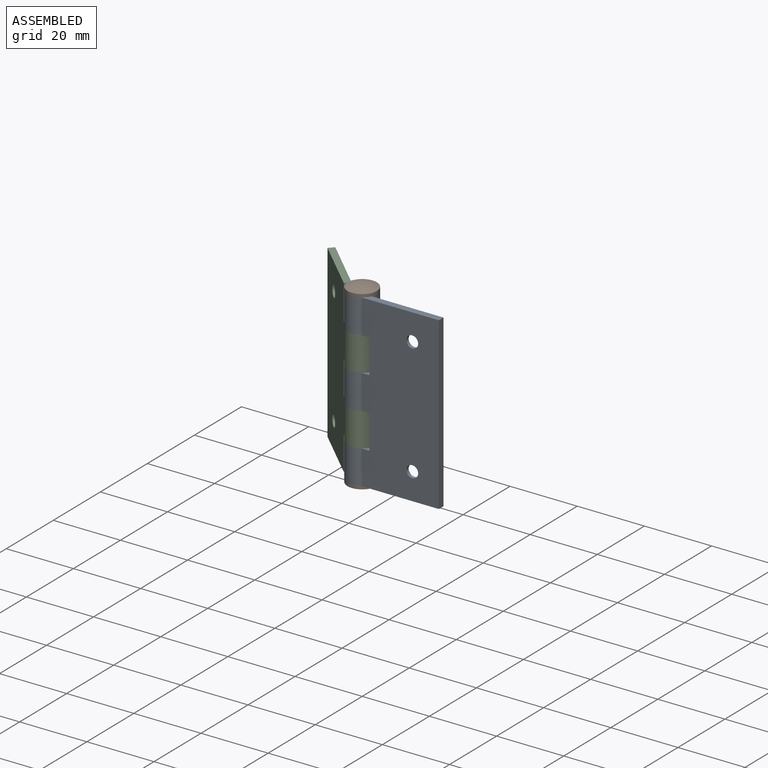
[diagram: assembled view]
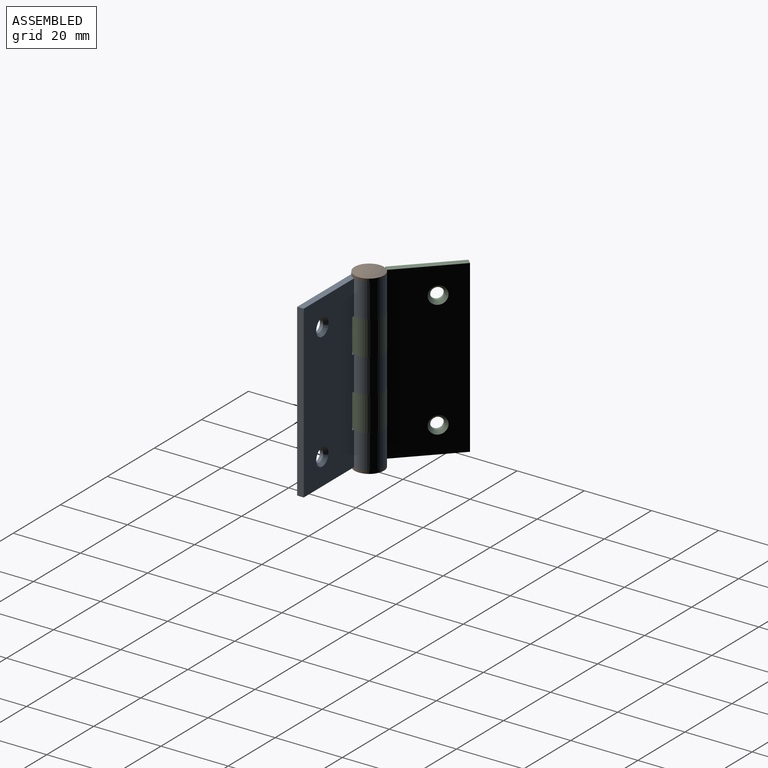
[diagram: assembled view, second angle]
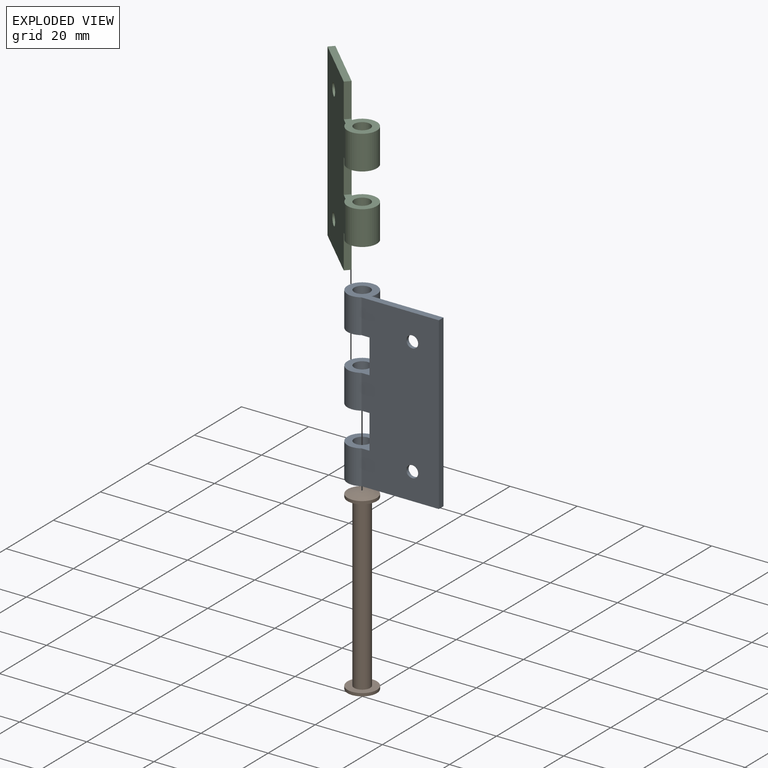
[diagram: exploded view]
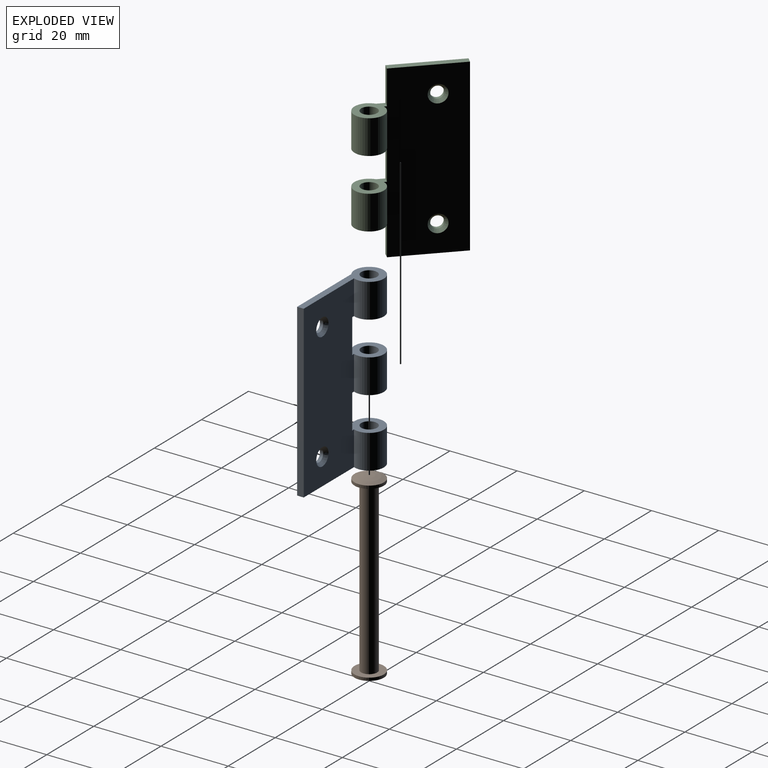
[diagram: exploded view, second angle]
ASSEMBLY  parts=3 mates=3
PART A: 21 faces, bbox 29.8x8.7x50.8 mm
  f0: cylinder r=4.37mm len=10.16mm, axis (0,0,-1), area 252.4mm2, adj f4,f9,f17,f19
  f1: cylinder r=2.38mm len=10.16mm, axis (0,0,-1), area 152mm2, adj f17,f19
  f2: cylinder r=4.37mm len=10.16mm, axis (0,0,-1), area 252.4mm2, adj f4,f6,f9,f16
  f3: cylinder r=2.38mm len=10.16mm, axis (0,0,-1), area 152mm2, adj f6,f16
  f4: plane 50.8x21.38mm, normal (0,1,0), area 1028.8mm2, adj f0,f2,f5,f6,f7,f8,f12,f14
  f5: plane 29.77x8.73mm, normal (0,0,1), area 85.2mm2, adj f4,f7,f8,f9,f10
  f6: plane 29.77x8.73mm, normal (0,0,-1), area 85.2mm2, adj f2,f3,f4,f7,f9
  f7: plane 50.8x1.96mm, normal (1,0,0), area 99.4mm2, adj f4,f5,f6,f9
  f8: cylinder r=4.37mm len=10.16mm, axis (0,0,-1), area 252.4mm2, adj f4,f5,f9,f20
  f9: plane 50.8x23.02mm, normal (0,-1,0), area 1102mm2, adj f0,f2,f5,f6,f7,f8,f11,f13
  f10: cylinder r=2.38mm len=10.16mm, axis (0,0,-1), area 152mm2, adj f5,f20
  f11: cylinder r=1.75mm len=3.51mm, axis (0,1,0), area 10.8mm2, adj f9,f12
  f12: cone r=1.75mm half-angle=41deg, axis (0,1,0), area 17.7mm2, adj f4,f11
  f13: cylinder r=1.75mm len=3.51mm, axis (0,1,0), area 10.8mm2, adj f9,f14
  f14: cone r=1.75mm half-angle=41deg, axis (0,1,0), area 17.7mm2, adj f4,f13
  f15: plane 10.16x1.96mm, normal (-1,0,0), area 19.9mm2, adj f4,f9,f16,f17
  f16: plane 9.11x8.73mm, normal (0,0,1), area 44.8mm2, adj f2,f3,f4,f9,f15
  f17: plane 9.11x8.73mm, normal (0,0,-1), area 44.8mm2, adj f0,f1,f4,f9,f15
  f18: plane 10.16x1.96mm, normal (-1,0,0), area 19.9mm2, adj f4,f9,f19,f20
  f19: plane 9.11x8.73mm, normal (0,0,1), area 44.8mm2, adj f0,f1,f4,f9,f18
  f20: plane 9.11x8.73mm, normal (0,0,-1), area 44.8mm2, adj f4,f8,f9,f10,f18
PART B: 7 faces, bbox 8.7x8.7x54.3 mm
  f0: sphere r=11.27mm, area 62.3mm2, adj f6
  f1: sphere r=11.27mm, area 62.3mm2, adj f2
  f2: cylinder r=4.37mm len=8.73mm, axis (0,0,-1), area 24.1mm2, adj f1,f3
  f3: plane 8.73x8.73mm, normal (0,0,-1), area 42.1mm2, adj f2,f4
  f4: cylinder r=2.38mm len=50.8mm, axis (0,0,-1), area 760.1mm2, adj f3,f5
  f5: plane 8.73x8.73mm, normal (0,0,1), area 42.1mm2, adj f4,f6
  f6: cylinder r=4.37mm len=8.73mm, axis (0,0,-1), area 24.1mm2, adj f0,f5
PART C: 20 faces, bbox 29.8x8.7x50.8 mm
  f0: plane 10.16x1.96mm, normal (1,0,0), area 19.9mm2, adj f3,f5,f12,f17
  f1: plane 10.16x1.96mm, normal (1,0,0), area 19.9mm2, adj f3,f5,f6,f16
  f2: plane 50.8x1.96mm, normal (-1,0,0), area 99.4mm2, adj f3,f5,f6,f7
  f3: plane 50.8x23.02mm, normal (0,-1,0), area 1078mm2, adj f0,f1,f2,f4,f6,f7,f8,f9
  f4: plane 10.16x1.96mm, normal (1,0,0), area 19.9mm2, adj f3,f5,f7,f13
  f5: plane 50.8x21.38mm, normal (0,1,0), area 1021.4mm2, adj f0,f1,f2,f4,f6,f7,f10,f11
  f6: plane 20.65x1.96mm, normal (0,0,1), area 40.4mm2, adj f1,f2,f3,f5
  f7: plane 20.65x1.96mm, normal (0,0,-1), area 40.4mm2, adj f2,f3,f4,f5
  f8: cylinder r=1.75mm len=3.51mm, axis (0,1,0), area 10.8mm2, adj f3,f11
  f9: cylinder r=1.75mm len=3.51mm, axis (0,1,0), area 10.8mm2, adj f3,f10
  f10: cone r=1.75mm half-angle=41deg, axis (0,1,0), area 17.7mm2, adj f5,f9
  f11: cone r=1.75mm half-angle=41deg, axis (0,1,0), area 17.7mm2, adj f5,f8
  f12: plane 9.11x8.73mm, normal (0,0,1), area 44.8mm2, adj f0,f3,f5,f14,f15
  f13: plane 9.11x8.73mm, normal (0,0,-1), area 44.8mm2, adj f3,f4,f5,f14,f15
  f14: cylinder r=4.37mm len=10.16mm, axis (0,0,-1), area 252.4mm2, adj f3,f5,f12,f13
  f15: cylinder r=2.38mm len=10.16mm, axis (0,0,-1), area 152mm2, adj f12,f13
  f16: plane 9.11x8.73mm, normal (0,0,1), area 44.8mm2, adj f1,f3,f5,f18,f19
  f17: plane 9.11x8.73mm, normal (0,0,-1), area 44.8mm2, adj f0,f3,f5,f18,f19
  f18: cylinder r=4.37mm len=10.16mm, axis (0,0,-1), area 252.4mm2, adj f3,f5,f16,f17
  f19: cylinder r=2.38mm len=10.16mm, axis (0,0,-1), area 152mm2, adj f16,f17
PLACE A at identity fixed
PLACE B at identity
PLACE C rot(axis=(0,0,-1),43.9deg) t=(0,0,0)mm
MATE fastened B.f2 <-> A.f0  axis (0,0,-1) through (0,0,25.4)mm
MATE planar A.f0 <-> C.f14  axis (0,0,-1) through (0,0,15.24)mm
MATE cylindrical C.f14 <-> A.f0  axis (0,0,1) through (0,0,15.24)mm
